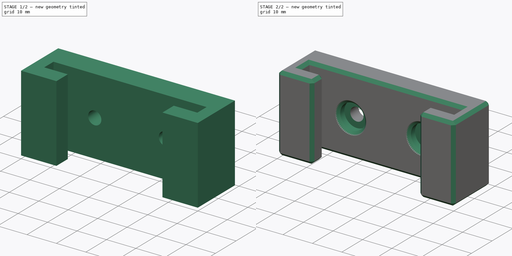
[diagram: build sequence overview — one tinted view per stage of 2, left to right]
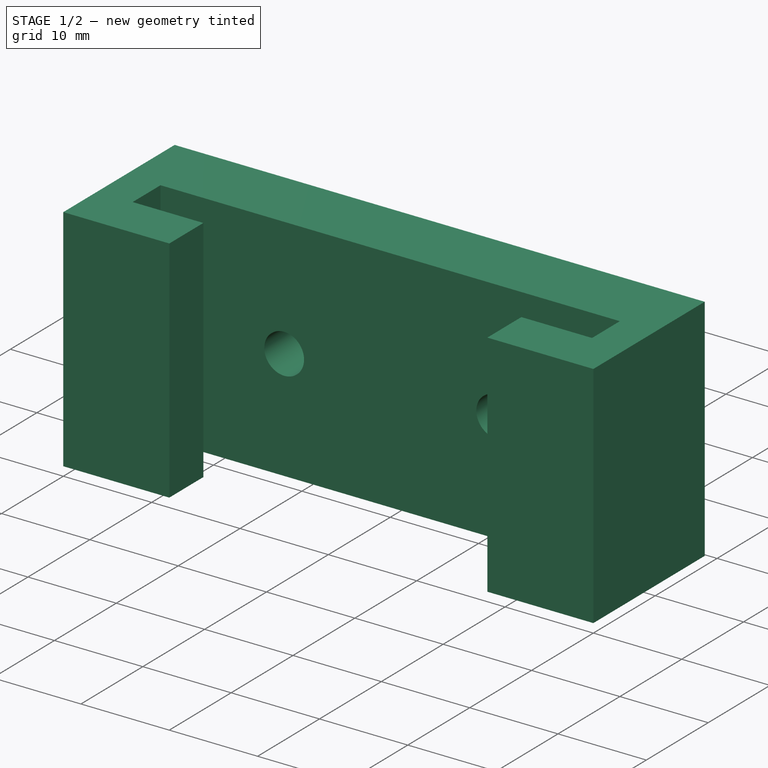
[diagram: stage 1 of 2 — iso view after this stage's code; geometry added in this stage tinted green]
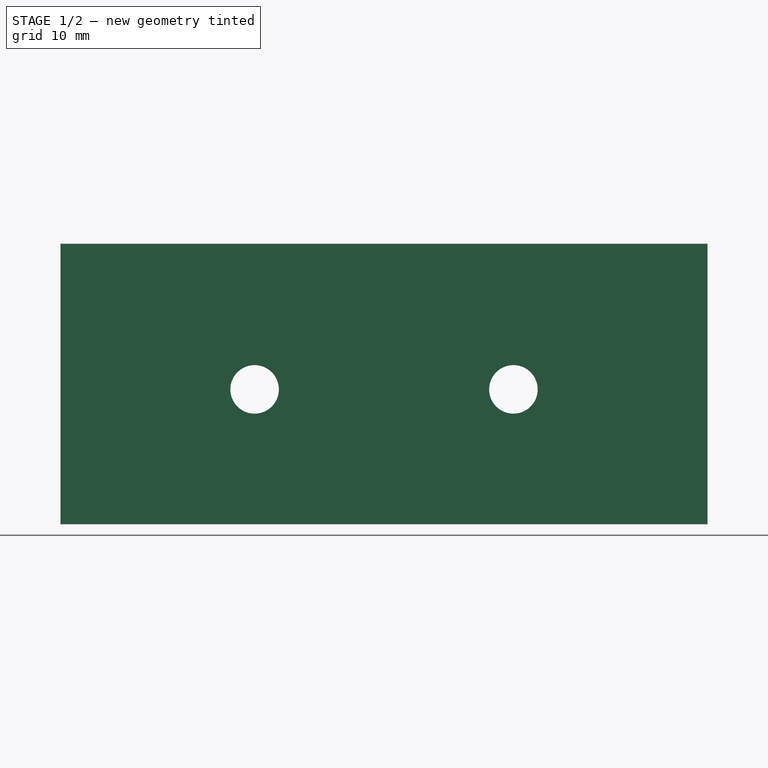
[diagram: stage 1 of 2 — front view after this stage's code; geometry added in this stage tinted green]
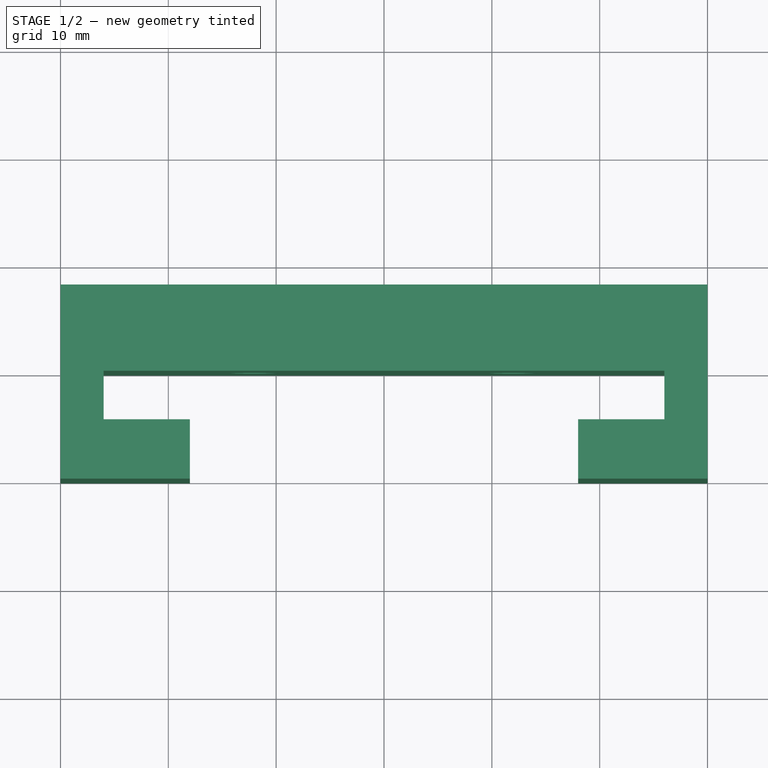
[diagram: stage 1 of 2 — top view after this stage's code; geometry added in this stage tinted green]
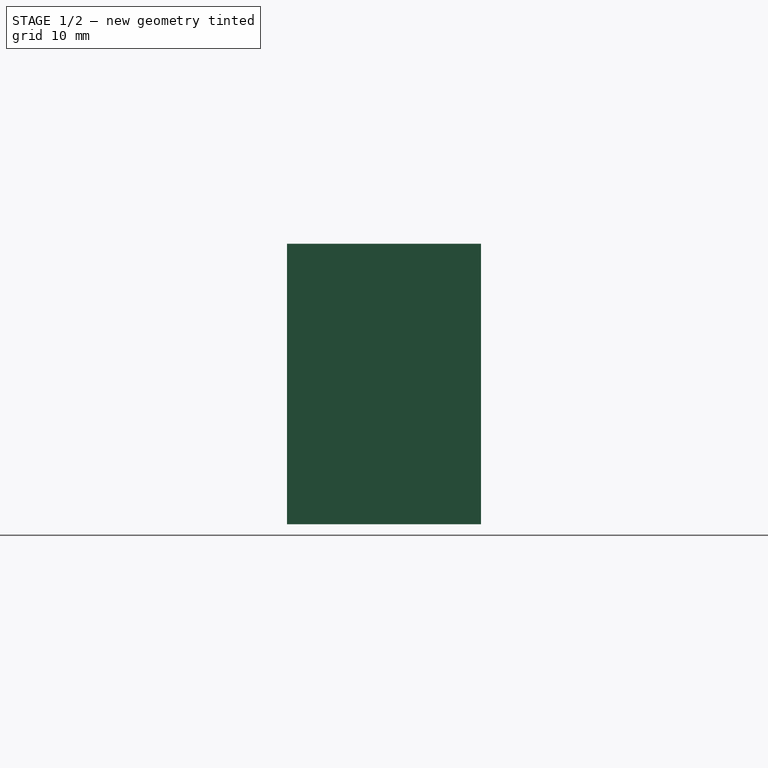
[diagram: stage 1 of 2 — right view after this stage's code; geometry added in this stage tinted green]
FCSTD DOCUMENT  (FreeCAD 1.2R20260609 (Git shallow))
Label: dewalt-battery-holder
License: All rights reserved
LicenseURL: http://en.wikipedia.org/wiki/All_rights_reserved
objects: Sketcher::SketchObject×3, PartDesign::Pocket×2, Part::Feature×1, PartDesign::Pad×1, PartDesign::Chamfer×1, PartDesign::Body×1, App::Point×1
note: 20 computed .brp shape members not serialized (recipe doc carries the construction recipe); baked Part::Feature solids carry a one-line shape summary decoded from their .brp

FEATURE [Part::Feature] batterymount002_solid  label="batterymount002 (Solid)"
  shape: bbox 60.4 x 18 x 24.8 mm, 1387 faces (baked)
FEATURE [Sketcher::SketchObject] Sketch003
  ArcFitTolerance = 0
  AttachmentSupport = -> [XY_Plane001]
  ExternalTypes = [0]
  FullyConstrained = true
  MakeInternals = false
  MapMode = 5
  sketch-geometry (12):
    g0: LineSegment StartX=-18 StartY=5.5 StartZ=0 EndX=-26 EndY=5.5 EndZ=0
    g1: LineSegment StartX=-26 StartY=5.5 StartZ=0 EndX=-26 EndY=10 EndZ=0
    g2: LineSegment StartX=-26 StartY=10 StartZ=0 EndX=26 EndY=10 EndZ=0
    g3: LineSegment StartX=26 StartY=10 StartZ=0 EndX=26 EndY=5.5 EndZ=0
    g4: LineSegment StartX=26 StartY=5.5 StartZ=0 EndX=18 EndY=5.5 EndZ=0
    g5: LineSegment StartX=18 StartY=5.5 StartZ=0 EndX=18 EndY=0 EndZ=0
    g6: LineSegment StartX=18 StartY=0 StartZ=0 EndX=30 EndY=0 EndZ=0
    g7: LineSegment StartX=30 StartY=0 StartZ=0 EndX=30 EndY=18 EndZ=0
    g8: LineSegment StartX=30 StartY=18 StartZ=0 EndX=-30 EndY=18 EndZ=0
    g9: LineSegment StartX=-30 StartY=18 StartZ=0 EndX=-30 EndY=0 EndZ=0
    g10: LineSegment StartX=-30 StartY=2e-16 StartZ=0 EndX=-18 EndY=2e-16 EndZ=0
    g11: LineSegment StartX=-18 StartY=2e-16 StartZ=0 EndX=-18 EndY=5.5 EndZ=0
  constraints (34):
    c: Horizontal(g0)
    c: Coincident(g0,g1)
    c: Vertical(g1)
    c: Coincident(g1,g2)
    c: Coincident(g2,g3)
    c: Coincident(g3,g4)
    c: Horizontal(g4)
    c: Coincident(g4,g5)
    c: Coincident(g5,g6)
    c: Horizontal(g6)
    c: Coincident(g6,g7)
    c: Coincident(g7,g8)
    c: Horizontal(g8)
    c: Coincident(g8,g9)
    c: Vertical(g9)
    c: Coincident(g9,g10)
    c: Horizontal(g10)
    c: Coincident(g10,g11)
    c: Coincident(g11,g0)
    c: Vertical(g11)
    c: Vertical(g5)
    c: Vertical(g3)
    c: Vertical(g7)
    c: Equal(g5,g11)
    c: Equal(g6,g10)
    c: Symmetric(g1,g2,g-2)
    c: DistanceX(g0,g0) = 8
    c: DistanceX(g9,g0) = 4
    c: DistanceY(g11,g11) = 5.5
    c: DistanceY(g1,g1) = 4.5
    c: DistanceY(g1,g8) = 8
    c: Symmetric(g0,g4,g-2)
    c: DistanceX(g10,g5) = 36
    c: PointOnObject(g5,g-1)
FEATURE [PartDesign::Pad] Pad
  Direction = (0,0,1)
  FuzzyTolerance = 0
  Length = 26
  Length2 = 10
  Profile = -> Sketch003
  ReferenceAxis = -> Sketch003 [N_Axis]
  SideType = 0
  Suppressed = false
  Type = 0
  Type2 = 0
FEATURE [Sketcher::SketchObject] Sketch004
  ArcFitTolerance = 0
  AttachmentSupport = -> [XZ_Plane001]
  ExternalTypes = [0]
  FullyConstrained = true
  MakeInternals = false
  MapMode = 5
  Placement = pos=(0,0,0) rot=(1,0,0;1.5708rad)
  sketch-geometry (2):
    g0: Circle CenterX=-12 CenterY=12.5 CenterZ=0 NormalX=0 NormalY=0 NormalZ=1 AngleXU=0 Radius=2.25
    g1: Circle CenterX=12 CenterY=12.5 CenterZ=0 NormalX=0 NormalY=0 NormalZ=1 AngleXU=0 Radius=2.25
  constraints (5):
    c: Equal(g0,g1)
    c: Diameter(g0) = 4.5
    c: Symmetric(g0,g1,g-2)
    c: DistanceX(g0,g1) = 24
    c: DistanceY(g-1,g1) = 12.5
FEATURE [PartDesign::Pocket] Pocket002
  BaseFeature = -> Pad
  Direction = (0,1,-2e-16)
  FuzzyTolerance = 0
  Length = 5
  Length2 = 5
  Profile = -> Sketch004
  ReferenceAxis = -> Sketch004 [N_Axis]
  SideType = 0
  Suppressed = false
  Type = 1
  Type2 = 0
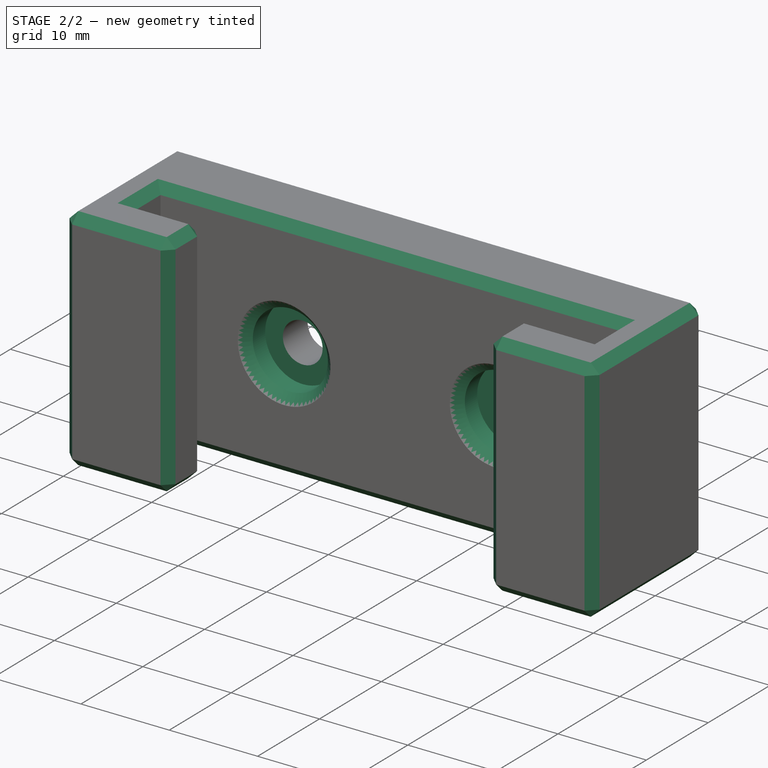
[diagram: stage 2 of 2 — iso view after this stage's code; geometry added in this stage tinted green]
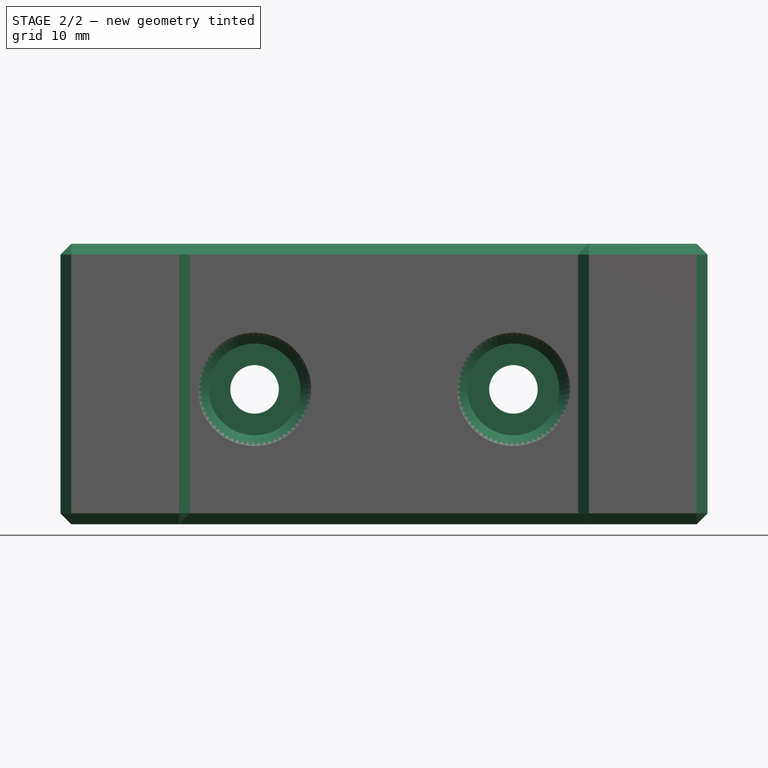
[diagram: stage 2 of 2 — front view after this stage's code; geometry added in this stage tinted green]
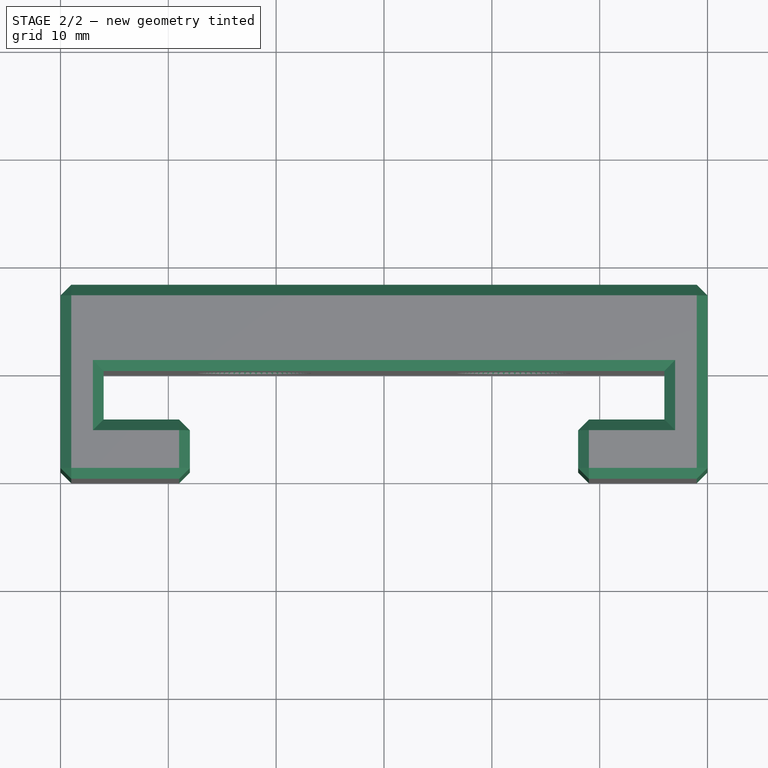
[diagram: stage 2 of 2 — top view after this stage's code; geometry added in this stage tinted green]
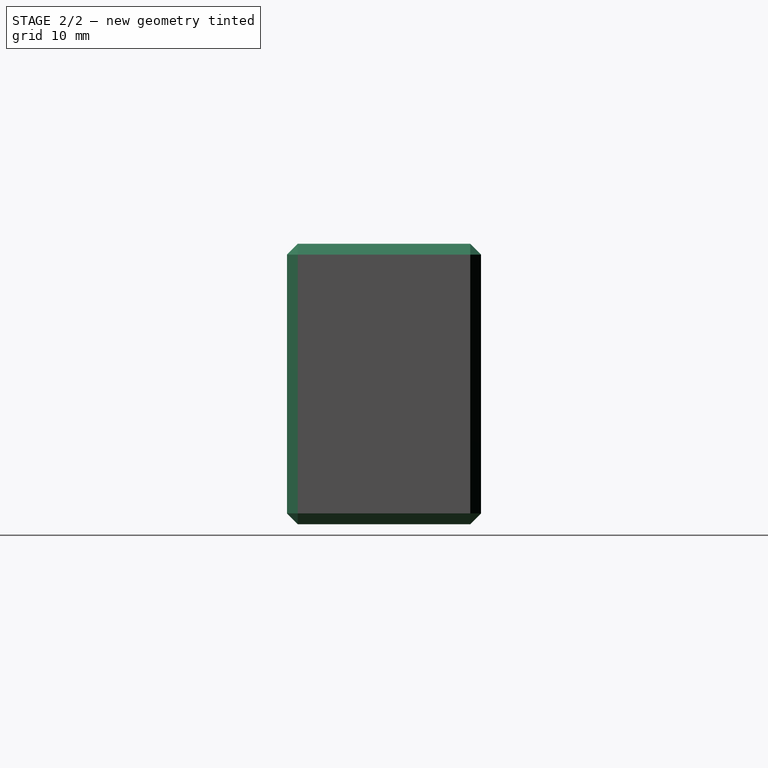
[diagram: stage 2 of 2 — right view after this stage's code; geometry added in this stage tinted green]
FEATURE [Sketcher::SketchObject] Sketch005
  ArcFitTolerance = 0
  AttachmentOffset = pos=(0,0,-10) rot=(0,0,1;0rad)
  AttachmentSupport = -> [XZ_Plane001]
  ExternalTypes = [0]
  FullyConstrained = true
  MakeInternals = false
  MapMode = 5
  Placement = pos=(0,10,-2.2e-15) rot=(1,0,0;1.5708rad)
  sketch-geometry (2):
    g0: Circle CenterX=-12 CenterY=12.5 CenterZ=0 NormalX=0 NormalY=0 NormalZ=1 AngleXU=0 Radius=4.25
    g1: Circle CenterX=12 CenterY=12.5 CenterZ=0 NormalX=0 NormalY=0 NormalZ=1 AngleXU=0 Radius=4.25
  constraints (5):
    c: Equal(g1,g0)
    c: Diameter(g1) = 8.5
    c: Symmetric(g0,g1,g-2)
    c: DistanceY(g-1,g1) = 12.5
    c: DistanceX(g0,g1) = 24
FEATURE [PartDesign::Pocket] Pocket003
  BaseFeature = -> Pocket002
  Direction = (0,1,-2e-16)
  FuzzyTolerance = 0
  Length = 3
  Length2 = 5
  Profile = -> Sketch005
  ReferenceAxis = -> Sketch005 [N_Axis]
  SideType = 0
  Suppressed = false
  Type = 0
  Type2 = 0
FEATURE [PartDesign::Chamfer] Chamfer
  Angle = 45
  Base = -> Pocket003 [Edge32,Edge31,Face2,Face10,Face11,Face4,Face6,Face14,Face5,Face13]
  BaseFeature = -> Pocket003
  ChamferType = 0
  FlipDirection = false
  FuzzyTolerance = 0
  Size = 1
  Size2 = 1
  SupportTransform = false
  Suppressed = false
  UseAllEdges = false
FEATURE [PartDesign::Body] Body001  label="Battery Holder"
  AllowCompound = true
  Group = -> [Sketch003,Pad,Sketch004,Pocket002,Sketch005,Pocket003,Chamfer]
  Origin = -> Origin001
  Tip = -> Chamfer
FEATURE [App::Point] Origin003  label="Origin-Point"
  Role = Origin
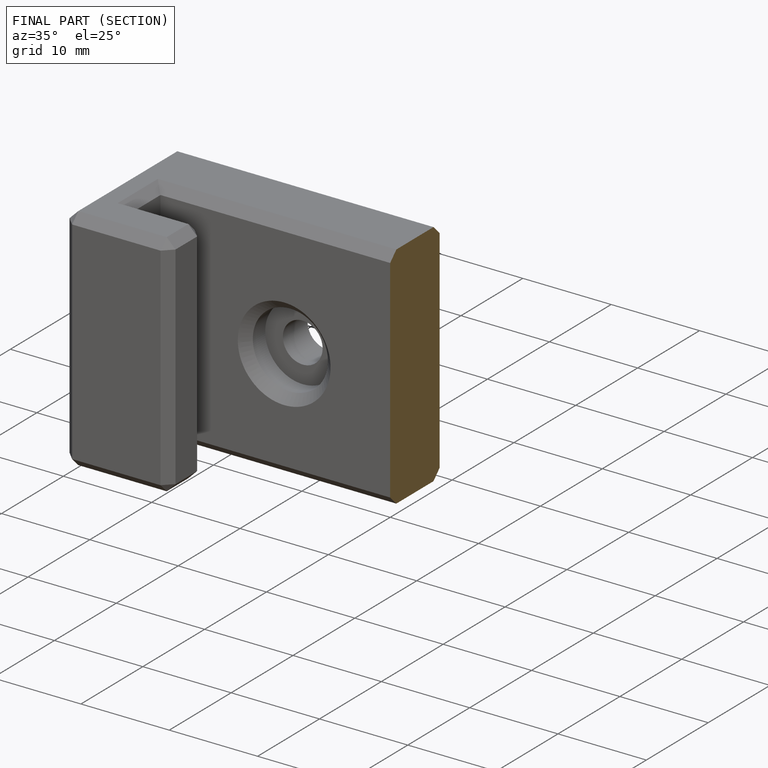
[diagram: finished part — half-section view (interior)]
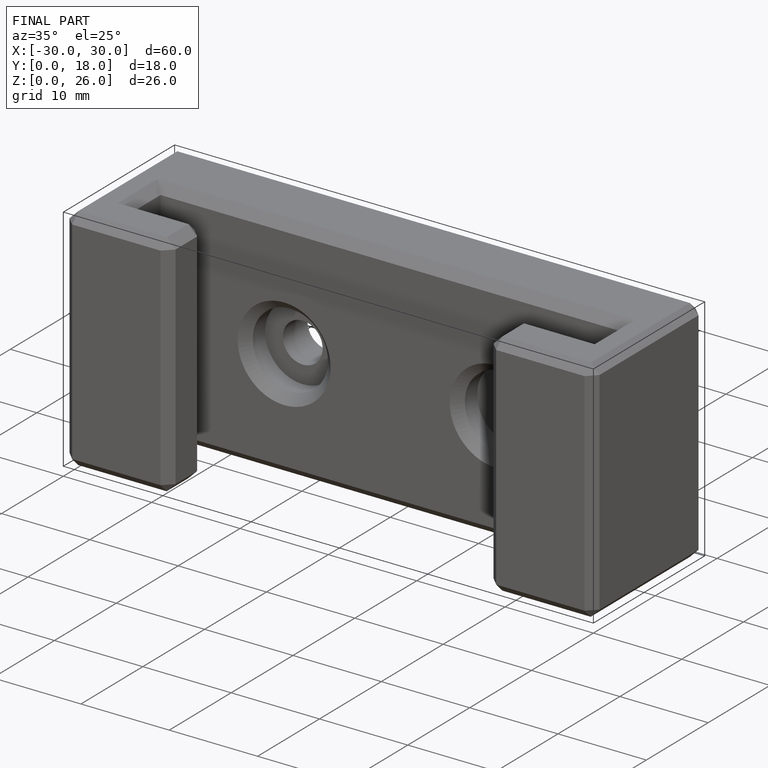
[diagram: finished part — iso view with bounding-box wireframe]
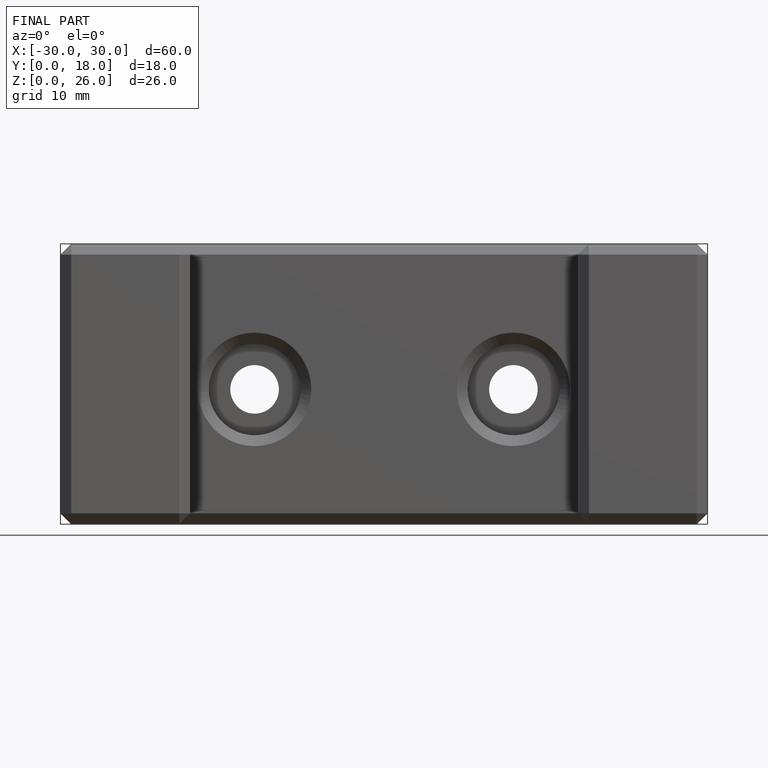
[diagram: finished part — front view with bounding-box wireframe]
